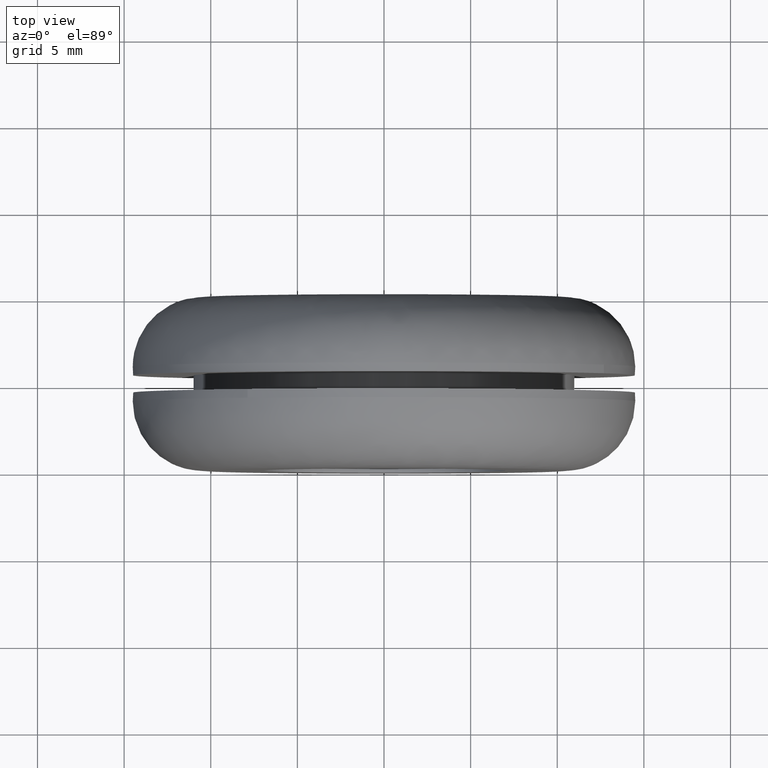
[diagram: clean part render]
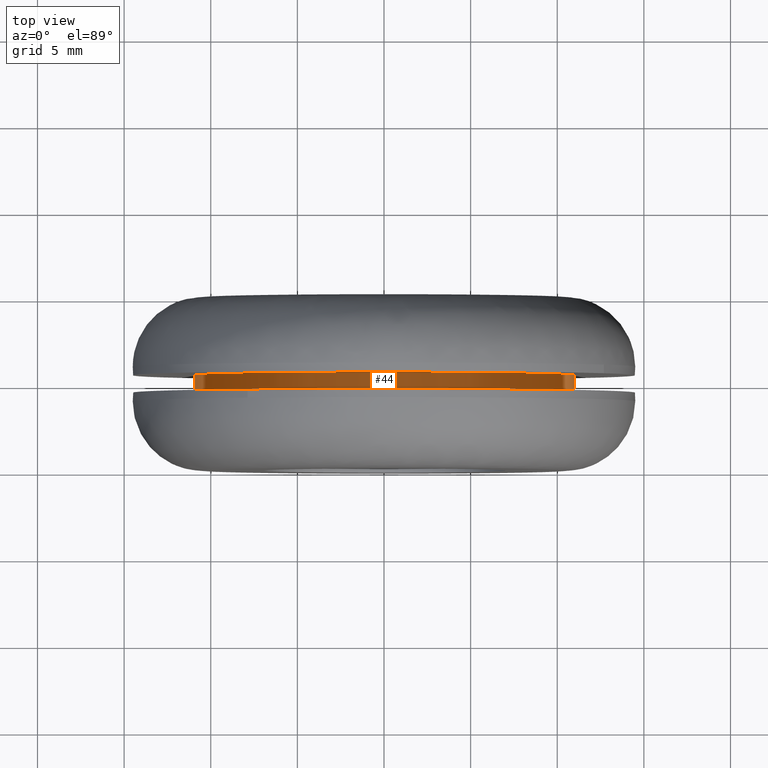
[diagram: same view with one face highlighted and labeled with its STEP entity id]
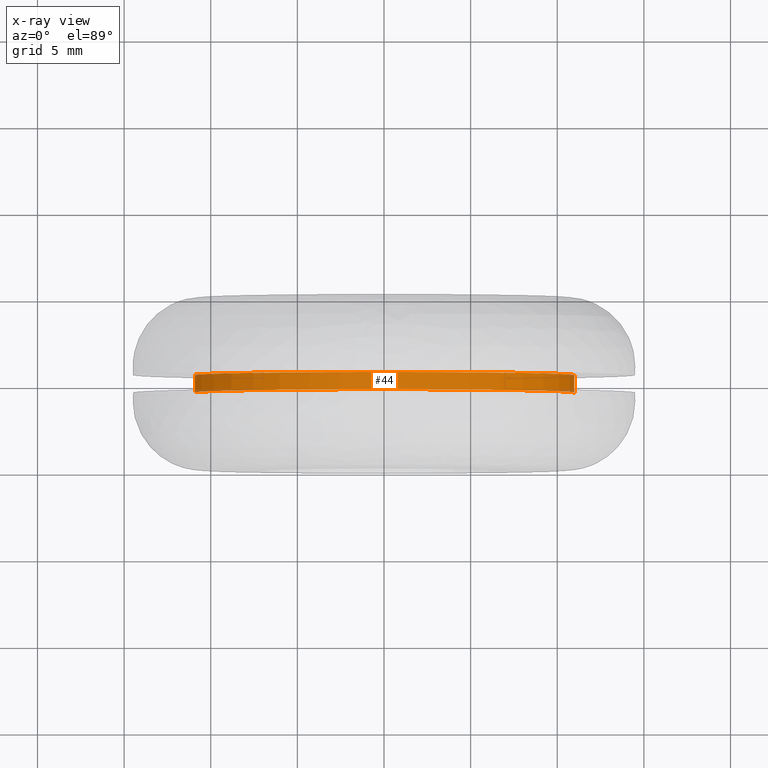
[diagram: x-ray of the same camera — body ghosted, the highlighted face saturated]
A machine part, top view. The second image highlights one B-rep face of the part: STEP entity #44.
The next image is the same camera in x-ray: the body ghosted, the highlighted face saturated — about 2% of this face is hidden behind the body in this view.
In plain terms, the highlighted cylindrical surface (partial cylindrical patch) has radius 11 mm, axis along (-0, 1, -0).
Its self-contained STEP definition (entity closure, byte-faithful):
#44=ADVANCED_FACE('',(#101),#100,.T.);
#100=CYLINDRICAL_SURFACE('',#247,1.10000000000E+001);
#101=FACE_OUTER_BOUND('',#248,.T.);
#244=CARTESIAN_POINT('',(-3.79912734607E-016,5.52500000000E+000,2.05053560369E-016));
#245=DIRECTION('',(-1.42013378390E-016,1.00000000000E+000,-1.19474352523E-015));
#246=DIRECTION('',(-9.93009526364E-001,-4.93038065763E-032,1.18034234657E-001));
#247=AXIS2_PLACEMENT_3D('',#244,#245,#246);
#248=EDGE_LOOP('',(#412,#413,#414,#415));
#412=ORIENTED_EDGE('',*,*,#500,.T.);
#413=ORIENTED_EDGE('',*,*,#514,.F.);
#414=ORIENTED_EDGE('',*,*,#494,.F.);
#415=ORIENTED_EDGE('',*,*,#515,.T.);
#494=EDGE_CURVE('',#563,#570,#571,.T.);
#500=EDGE_CURVE('',#612,#604,#613,.T.);
#514=EDGE_CURVE('',#570,#604,#709,.T.);
#515=EDGE_CURVE('',#563,#612,#715,.T.);
#563=VERTEX_POINT('',#902);
#570=VERTEX_POINT('',#907);
#571=CIRCLE('',#911,1.10000000000E+001);
#604=VERTEX_POINT('',#931);
#612=VERTEX_POINT('',#937);
#613=CIRCLE('',#941,1.10000000000E+001);
#709=(BOUNDED_CURVE() B_SPLINE_CURVE(1,(#1006,#1007),.UNSPECIFIED.,.F.,.F.) B_SPLINE_CURVE_WITH_KNOTS((2,2),(8.33333730703E-002,9.16666640476E-001),.UNSPECIFIED.) CURVE() GEOMETRIC_REPRESENTATION_ITEM() RATIONAL_B_SPLINE_CURVE((1.00000000000E+000,1.00000000000E+000)) REPRESENTATION_ITEM('') );
#715=(BOUNDED_CURVE() B_SPLINE_CURVE(1,(#1008,#1009),.UNSPECIFIED.,.F.,.F.) B_SPLINE_CURVE_WITH_KNOTS((2,2),(8.33333333442E-002,9.16666666667E-001),.UNSPECIFIED.) CURVE() GEOMETRIC_REPRESENTATION_ITEM() RATIONAL_B_SPLINE_CURVE((7.50000000000E-001,7.50000000000E-001)) REPRESENTATION_ITEM('') );
#902=CARTESIAN_POINT('',(1.09228802215E+001,4.50000000000E+000,-1.30026446011E+000));
#907=CARTESIAN_POINT('',(-1.09231047900E+001,4.50000000000E+000,1.29837658116E+000));
#908=CARTESIAN_POINT('',(1.84829929140E-012,4.50000000000E+000,4.07407441116E-012));
#909=DIRECTION('',(-7.79609173207E-014,-1.00000000000E+000,-5.22486751144E-013));
#910=DIRECTION('',(-1.67948988050E-013,5.22486751144E-013,-1.00000000000E+000));
#911=AXIS2_PLACEMENT_3D('',#908,#909,#910);
#931=CARTESIAN_POINT('',(-1.09231047900E+001,5.50000000000E+000,1.29837658116E+000));
#937=CARTESIAN_POINT('',(1.09228802215E+001,5.50000000000E+000,-1.30026446011E+000));
#938=CARTESIAN_POINT('',(1.80655490567E-012,5.50000000000E+000,3.97282207132E-012));
#939=DIRECTION('',(-4.00972834440E-016,-1.00000000000E+000,-3.37336201448E-015));
#940=DIRECTION('',(-1.64562807825E-013,3.37336201448E-015,-1.00000000000E+000));
#941=AXIS2_PLACEMENT_3D('',#938,#939,#940);
#1006=CARTESIAN_POINT('',(-1.09231047900E+001,4.50000004767E+000,1.29837658122E+000));
#1007=CARTESIAN_POINT('',(-1.09231047900E+001,5.49999996857E+000,1.29837658122E+000));
#1008=CARTESIAN_POINT('',(1.09231047900E+001,4.50000000000E+000,-1.29837658122E+000));
#1009=CARTESIAN_POINT('',(1.09231047900E+001,5.50000000000E+000,-1.29837658122E+000));